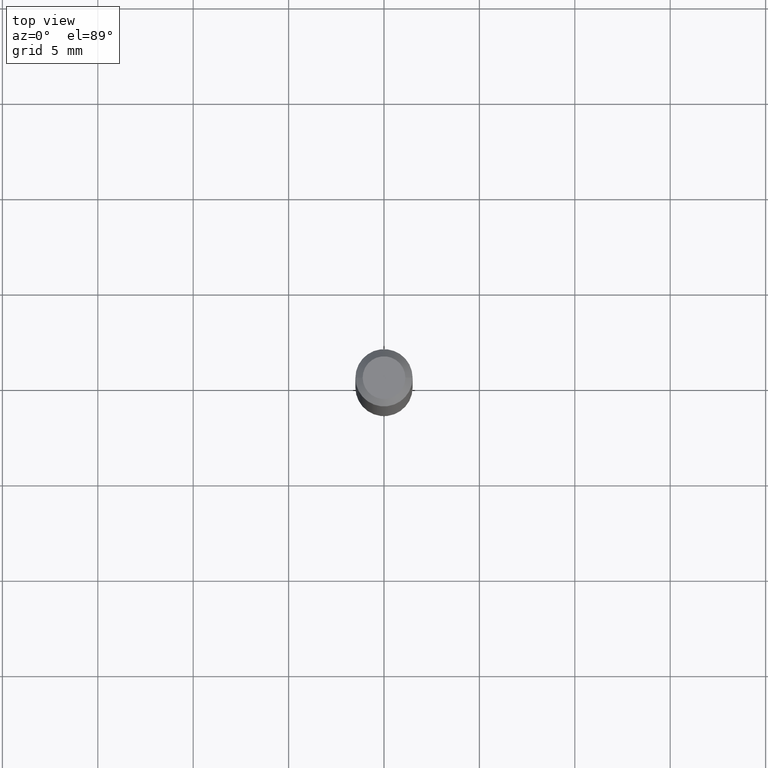
[diagram: clean part render]
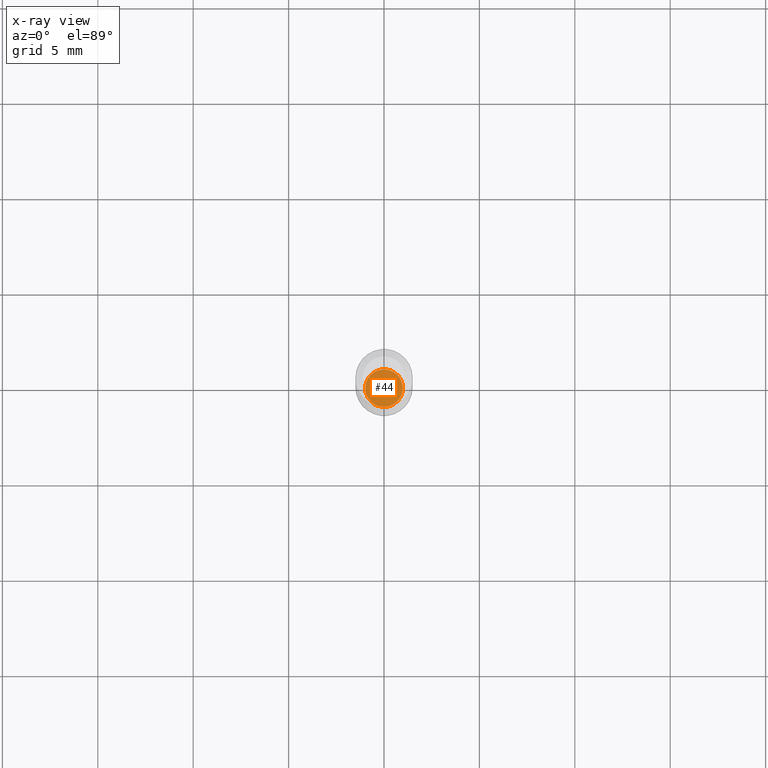
[diagram: x-ray — body ghosted, one internal face saturated and labeled with its STEP entity id]
A machine part, top view, then the same camera in x-ray: the body is ghosted and one INTERNAL B-rep face — a face not visible from any outside direction — is saturated and labeled: STEP entity #44.
In plain terms, the highlighted planar face has unit normal (-0, 0, 1).
Its self-contained STEP definition (entity closure, byte-faithful):
#31 = VERTEX_POINT ( 'NONE', #436 ) ;
#44 = ADVANCED_FACE ( 'NONE', ( #363 ), #361, .F. ) ;
#104 = EDGE_CURVE ( 'NONE', #31, #248, #461, .T. ) ;
#110 = ORIENTED_EDGE ( 'NONE', *, *, #104, .F. ) ;
#141 = AXIS2_PLACEMENT_3D ( 'NONE', #323, #190, #221 ) ;
#144 = EDGE_CURVE ( 'NONE', #248, #31, #219, .T. ) ;
#190 = DIRECTION ( 'NONE',  ( -2.438088387897960049E-29, 3.491481338843145188E-15, 1.000000000000000000 ) ) ;
#193 = DIRECTION ( 'NONE',  ( -2.445468806185136597E-29, 3.491481338843145583E-15, 1.000000000000000000 ) ) ;
#198 = DIRECTION ( 'NONE',  ( 1.000000000000000000, -6.982962677686256455E-15, 0.000000000000000000 ) ) ;
#219 = CIRCLE ( 'NONE', #452, 0.03885000000000000259 ) ;
#221 = DIRECTION ( 'NONE',  ( 1.000000000000000000, -6.982962677686265922E-15, 4.876176775795935793E-29 ) ) ;
#248 = VERTEX_POINT ( 'NONE', #372 ) ;
#256 = AXIS2_PLACEMENT_3D ( 'NONE', #286, #365, #430 ) ;
#286 = CARTESIAN_POINT ( 'NONE',  ( 3.061726945343791391E-29, -4.371334636231619274E-15, -1.252000000000000224 ) ) ;
#323 = CARTESIAN_POINT ( 'NONE',  ( 3.061726945343791391E-29, -4.371334636231619274E-15, -1.252000000000000224 ) ) ;
#350 = ORIENTED_EDGE ( 'NONE', *, *, #144, .F. ) ;
#354 = EDGE_LOOP ( 'NONE', ( #350, #110 ) ) ;
#361 = PLANE ( 'NONE',  #141 ) ;
#363 = FACE_OUTER_BOUND ( 'NONE', #354, .T. ) ;
#365 = DIRECTION ( 'NONE',  ( -2.445468806185136597E-29, 3.491481338843145583E-15, 1.000000000000000000 ) ) ;
#372 = CARTESIAN_POINT ( 'NONE',  ( 0.03885000000000000259, -4.642622736259730395E-15, -1.252000000000000224 ) ) ;
#410 = CARTESIAN_POINT ( 'NONE',  ( 3.061726945343791391E-29, -4.371334636231619274E-15, -1.252000000000000224 ) ) ;
#430 = DIRECTION ( 'NONE',  ( 1.000000000000000000, -6.982962677686256455E-15, 0.000000000000000000 ) ) ;
#436 = CARTESIAN_POINT ( 'NONE',  ( -0.03885000000000000259, -4.092639556214709577E-15, -1.252000000000000224 ) ) ;
#452 = AXIS2_PLACEMENT_3D ( 'NONE', #410, #193, #198 ) ;
#461 = CIRCLE ( 'NONE', #256, 0.03885000000000000259 ) ;